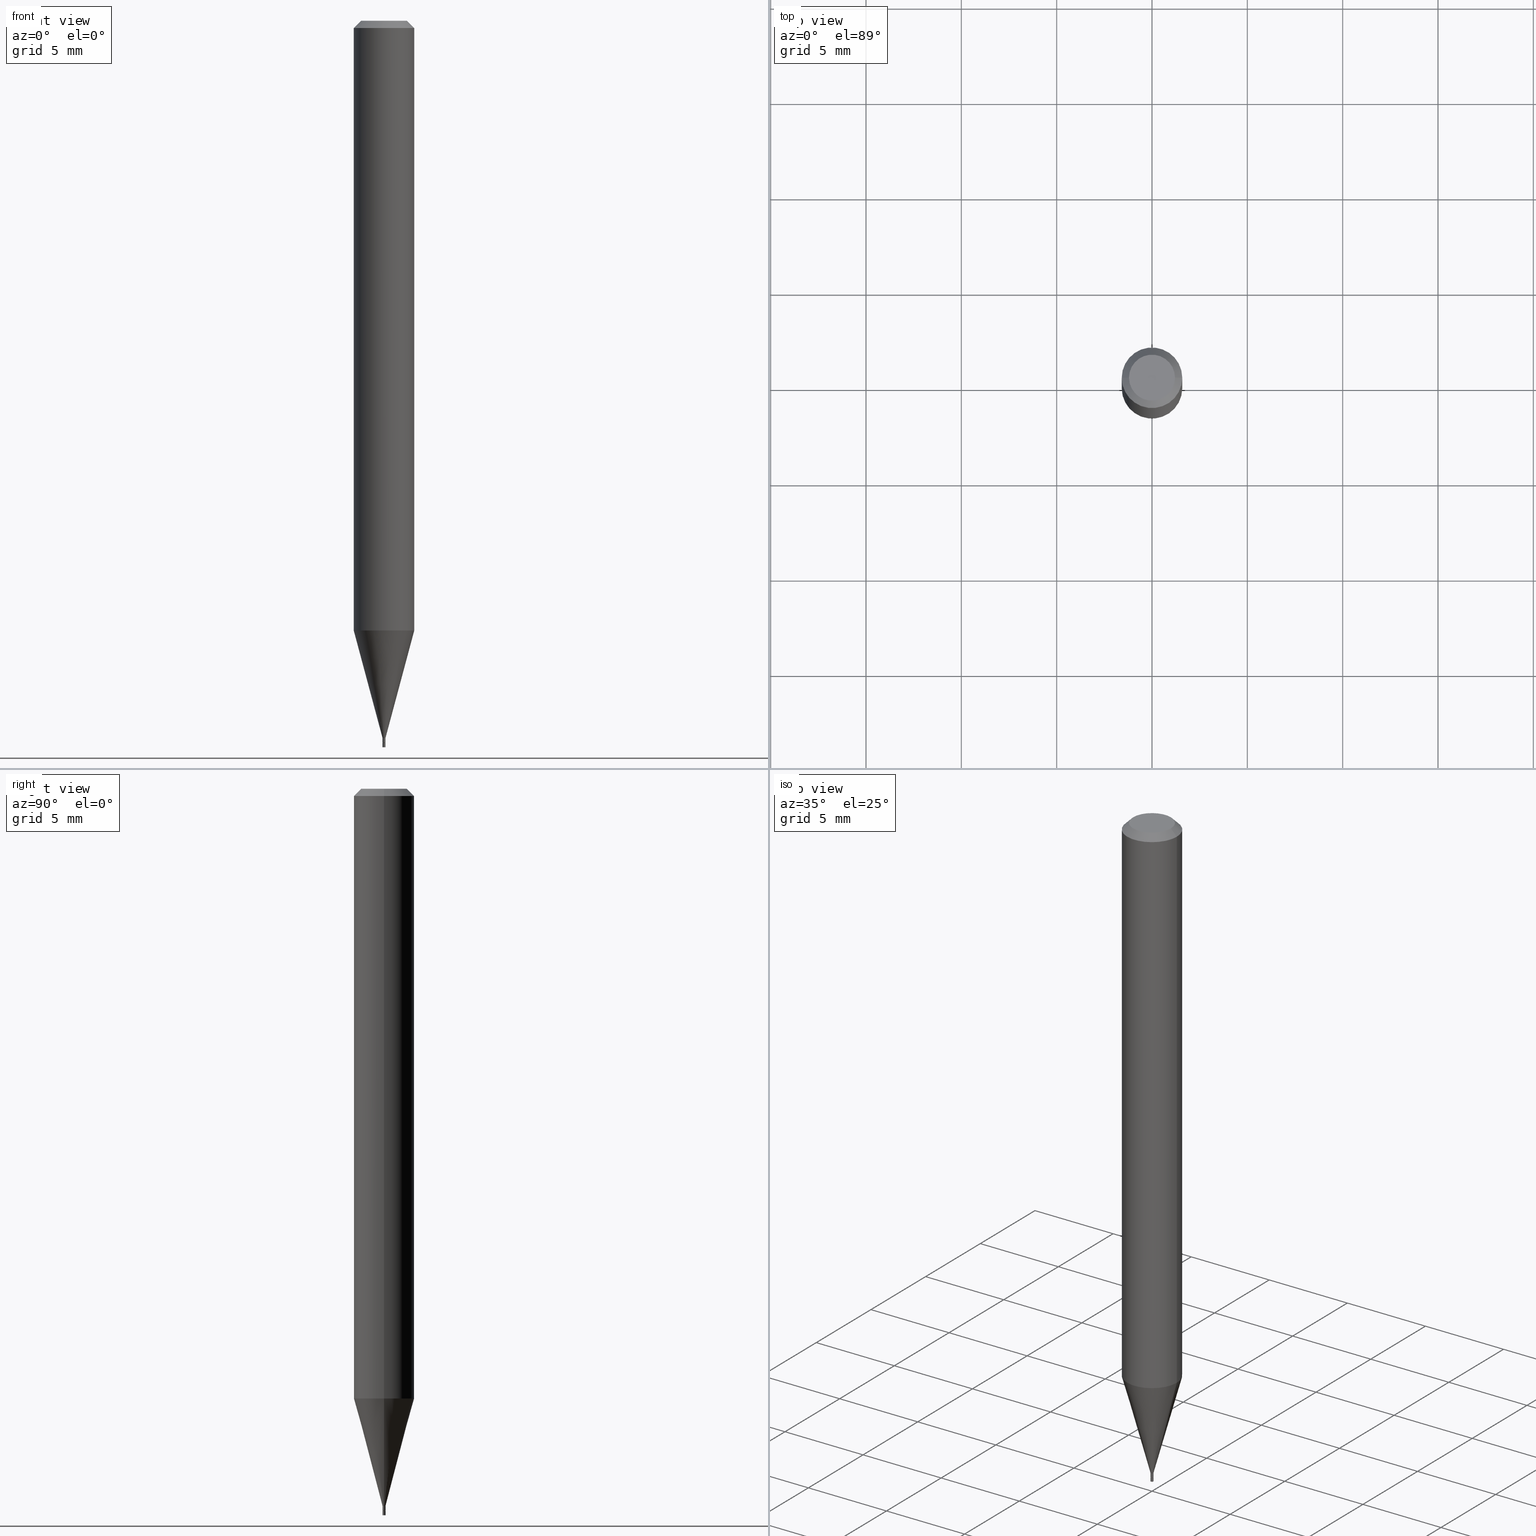
[diagram: canonical four-view strip — front | top / right | iso, engineering-drawing reading convention]
A machine part, canonical four-view strip (front | top / right | iso — engineering-drawing reading convention). The complete STEP part file that produces these views, byte-faithful:
ISO-10303-21;
HEADER;
FILE_DESCRIPTION (( 'STEP AP203' ),
    '1' );
FILE_NAME ('00302.STEP',
    '2024-03-19T20:57:00',
    ( '' ),
    ( '' ),
    'SwSTEP 2.0',
    'SolidWorks 2023',
    '' );
FILE_SCHEMA (( 'CONFIG_CONTROL_DESIGN' ));
ENDSEC;

DATA;
#1 = CIRCLE ( 'NONE', #261, 0.002500000000000000052 ) ;
#2 = ORIENTED_EDGE ( 'NONE', *, *, #102, .T. ) ;
#3 = DIRECTION ( 'NONE',  ( -2.445468806185136597E-29, 3.491481338843145583E-15, 1.000000000000000000 ) ) ;
#4 = UNCERTAINTY_MEASURE_WITH_UNIT (LENGTH_MEASURE( 1.000000000000000082E-05 ), #9, 'distance_accuracy_value', 'NONE');
#5 = DIRECTION ( 'NONE',  ( -2.445468806185136597E-29, 3.491481338843145583E-15, 1.000000000000000000 ) ) ;
#6 = DIRECTION ( 'NONE',  ( -2.445468806185136597E-29, 3.491481338843145583E-15, 1.000000000000000000 ) ) ;
#7 = APPROVAL_DATE_TIME ( #126, #296 ) ;
#8 = EDGE_CURVE ( 'NONE', #421, #144, #164, .T. ) ;
#9 =( CONVERSION_BASED_UNIT ( 'INCH', #436 ) LENGTH_UNIT ( ) NAMED_UNIT ( #143 ) );
#10 = CIRCLE ( 'NONE', #178, 0.06250000000000000000 ) ;
#11 = EDGE_CURVE ( 'NONE', #462, #62, #53, .T. ) ;
#12 = CIRCLE ( 'NONE', #139, 0.003000000000000000062 ) ;
#13 = PERSON_AND_ORGANIZATION ( #15, #301 ) ;
#14 = COORDINATED_UNIVERSAL_TIME_OFFSET ( 5, 0, .BEHIND. ) ;
#15 = PERSON ( 'UNSPECIFIED', 'UNSPECIFIED', 'UNSPECIFIED', ('UNSPECIFIED'), ('UNSPECIFIED'), ('UNSPECIFIED') ) ;
#16 = APPROVAL_STATUS ( 'not_yet_approved' ) ;
#17 = APPROVAL_PERSON_ORGANIZATION ( #334, #296, #81 ) ;
#18 = CARTESIAN_POINT ( 'NONE',  ( 3.668203209277705088E-31, -5.237222008264718399E-17, -0.01499999999999999944 ) ) ;
#19 = DIRECTION ( 'NONE',  ( 1.000000000000000000, -6.982962677686267499E-15, 5.108144071313017768E-29 ) ) ;
#20 = ADVANCED_FACE ( 'NONE', ( #272 ), #230, .T. ) ;
#21 = DIRECTION ( 'NONE',  ( 1.000000000000000000, -6.982962677686265922E-15, 4.876176775795935793E-29 ) ) ;
#22 = CC_DESIGN_PERSON_AND_ORGANIZATION_ASSIGNMENT ( #443, #123, ( #125 ) ) ;
#23 = CARTESIAN_POINT ( 'NONE',  ( -0.003000000000000000062, 2.131628207280300602E-17, -1.475680527076471750E-31 ) ) ;
#24 = ORIENTED_EDGE ( 'NONE', *, *, #458, .F. ) ;
#25 = CIRCLE ( 'NONE', #247, 0.04749999999999999362 ) ;
#26 = LINE ( 'NONE', #276, #154 ) ;
#27 = ORIENTED_EDGE ( 'NONE', *, *, #346, .F. ) ;
#28 = ADVANCED_FACE ( 'NONE', ( #344 ), #100, .T. ) ;
#29 = CARTESIAN_POINT ( 'NONE',  ( 0.06250000000000000000, -4.811533449433679005E-16, -0.01499999999999999944 ) ) ;
#30 = DIRECTION ( 'NONE',  ( -1.000000000000000000, 6.982962677686266711E-15, 0.000000000000000000 ) ) ;
#31 = LOCAL_TIME ( 16, 57, 0.000000000000000000, #119 ) ;
#32 = CONICAL_SURFACE ( 'NONE', #134, 0.002500000000000000052, 0.7853981633974723708 ) ;
#33 = ORIENTED_EDGE ( 'NONE', *, *, #159, .F. ) ;
#34 = LINE ( 'NONE', #284, #313 ) ;
#35 = CC_DESIGN_PERSON_AND_ORGANIZATION_ASSIGNMENT ( #343, #366, ( #427 ) ) ;
#36 = CIRCLE ( 'NONE', #363, 0.003000000000000000062 ) ;
#37 = ORIENTED_EDGE ( 'NONE', *, *, #193, .F. ) ;
#38 = DIRECTION ( 'NONE',  ( -0.2588190451025213501, 5.211531920934551042E-15, 0.9659258262890682012 ) ) ;
#39 = CARTESIAN_POINT ( 'NONE',  ( -8.783475466943041190E-44, 1.254047510459085029E-29, 3.591734821858152800E-15 ) ) ;
#40 = LOCAL_TIME ( 16, 57, 0.000000000000000000, #14 ) ;
#41 =( GEOMETRIC_REPRESENTATION_CONTEXT ( 3 ) GLOBAL_UNCERTAINTY_ASSIGNED_CONTEXT ( ( #4 ) ) GLOBAL_UNIT_ASSIGNED_CONTEXT ( ( #9, #153, #82 ) ) REPRESENTATION_CONTEXT ( 'NONE', 'WORKASPACE' ) );
#42 = EDGE_CURVE ( 'NONE', #146, #439, #36, .T. ) ;
#43 = FACE_OUTER_BOUND ( 'NONE', #463, .T. ) ;
#44 = ORIENTED_EDGE ( 'NONE', *, *, #429, .F. ) ;
#45 = CARTESIAN_POINT ( 'NONE',  ( 0.002999999999999922867, -5.225001823578766863E-15, -1.490500000000000158 ) ) ;
#46 = EDGE_CURVE ( 'NONE', #421, #413, #378, .T. ) ;
#47 = COORDINATED_UNIVERSAL_TIME_OFFSET ( 5, 0, .BEHIND. ) ;
#48 = LINE ( 'NONE', #190, #198 ) ;
#49 = ADVANCED_FACE ( 'NONE', ( #231 ), #304, .T. ) ;
#50 = DIRECTION ( 'NONE',  ( 2.445468806185136597E-29, -3.491481338843145583E-15, -1.000000000000000000 ) ) ;
#51 = PERSON_AND_ORGANIZATION_ROLE ( 'creator' ) ;
#52 = AXIS2_PLACEMENT_3D ( 'NONE', #398, #423, #150 ) ;
#53 = CIRCLE ( 'NONE', #341, 0.003000000000000000062 ) ;
#54 = DATE_TIME_ROLE ( 'creation_date' ) ;
#55 = CALENDAR_DATE ( 2024, 19, 3 ) ;
#56 = CARTESIAN_POINT ( 'NONE',  ( 3.646193990022038953E-29, -5.205798676215130324E-15, -1.491000000000000103 ) ) ;
#57 = AXIS2_PLACEMENT_3D ( 'NONE', #305, #63, #385 ) ;
#58 = DIRECTION ( 'NONE',  ( -2.445468806185136597E-29, 3.491481338843145583E-15, 1.000000000000000000 ) ) ;
#59 = VERTEX_POINT ( 'NONE', #353 ) ;
#60 = PRODUCT_DEFINITION_SHAPE ( 'NONE', 'NONE',  #177 ) ;
#61 = FACE_OUTER_BOUND ( 'NONE', #283, .T. ) ;
#62 = VERTEX_POINT ( 'NONE', #309 ) ;
#63 = DIRECTION ( 'NONE',  ( -2.445468806185136597E-29, 3.491481338843145583E-15, 1.000000000000000000 ) ) ;
#64 = CIRCLE ( 'NONE', #157, 0.06250000000000000000 ) ;
#65 = CARTESIAN_POINT ( 'NONE',  ( 3.646193990022038953E-29, -5.205798676215130324E-15, -1.491000000000000103 ) ) ;
#66 = EDGE_LOOP ( 'NONE', ( #132, #219 ) ) ;
#67 = CARTESIAN_POINT ( 'NONE',  ( -0.04749999999999999362, 3.578768372314273615E-16, 3.591734821858150433E-15 ) ) ;
#68 = ORIENTED_EDGE ( 'NONE', *, *, #8, .T. ) ;
#69 = CARTESIAN_POINT ( 'NONE',  ( 3.621739301960187407E-29, -5.170883862826698675E-15, -1.481000000000000094 ) ) ;
#70 = CC_DESIGN_PERSON_AND_ORGANIZATION_ASSIGNMENT ( #263, #342, ( #287 ) ) ;
#71 = VECTOR ( 'NONE', #451, 39.37007874015748143 ) ;
#72 = CARTESIAN_POINT ( 'NONE',  ( -0.002999999999999922867, -5.182736653472906584E-15, -1.490500000000000158 ) ) ;
#73 = CONICAL_SURFACE ( 'NONE', #369, 0.06250000000000000000, 0.7853981633973285970 ) ;
#74 = AXIS2_PLACEMENT_3D ( 'NONE', #18, #50, #196 ) ;
#75 = EDGE_LOOP ( 'NONE', ( #110, #78 ) ) ;
#76 = DIRECTION ( 'NONE',  ( 1.000000000000000000, -6.982962677686191769E-15, 0.000000000000000000 ) ) ;
#77 = CARTESIAN_POINT ( 'NONE',  ( 0.000000000000000000, 0.000000000000000000, 0.000000000000000000 ) ) ;
#78 = ORIENTED_EDGE ( 'NONE', *, *, #42, .F. ) ;
#79 = CC_DESIGN_PERSON_AND_ORGANIZATION_ASSIGNMENT ( #370, #51, ( #177 ) ) ;
#80 = DIRECTION ( 'NONE',  ( -2.445468806185136597E-29, 3.491481338843145583E-15, 1.000000000000000000 ) ) ;
#81 = APPROVAL_ROLE ( '' ) ;
#82 =( NAMED_UNIT ( * ) SI_UNIT ( $, .STERADIAN. ) SOLID_ANGLE_UNIT ( ) );
#83 = APPROVAL_ROLE ( '' ) ;
#84 = EDGE_LOOP ( 'NONE', ( #107, #138, #192, #340 ) ) ;
#85 = CC_DESIGN_PERSON_AND_ORGANIZATION_ASSIGNMENT ( #399, #189, ( #287 ) ) ;
#86 = APPROVAL_PERSON_ORGANIZATION ( #408, #374, #299 ) ;
#87 = DATE_AND_TIME ( #55, #225 ) ;
#88 = DIRECTION ( 'NONE',  ( 1.000000000000000000, -6.982962677686332186E-15, 0.000000000000000000 ) ) ;
#89 = CIRCLE ( 'NONE', #227, 0.002999999999999921566 ) ;
#90 = DIRECTION ( 'NONE',  ( 1.000000000000000000, -6.982962677686188613E-15, 0.000000000000000000 ) ) ;
#91 = EDGE_CURVE ( 'NONE', #439, #146, #12, .T. ) ;
#92 = DIRECTION ( 'NONE',  ( -2.445468806185136597E-29, 3.491481338843145583E-15, 1.000000000000000000 ) ) ;
#93 = DIRECTION ( 'NONE',  ( -2.445468806185136597E-29, 3.491481338843145583E-15, 1.000000000000000000 ) ) ;
#94 = EDGE_CURVE ( 'NONE', #59, #275, #166, .T. ) ;
#95 = VERTEX_POINT ( 'NONE', #98 ) ;
#96 = FACE_OUTER_BOUND ( 'NONE', #428, .T. ) ;
#97 = AXIS2_PLACEMENT_3D ( 'NONE', #348, #382, #446 ) ;
#98 = CARTESIAN_POINT ( 'NONE',  ( 0.002500000000000000052, -5.223256082909346148E-15, -1.491000000000000103 ) ) ;
#99 = ORIENTED_EDGE ( 'NONE', *, *, #11, .F. ) ;
#100 = CONICAL_SURFACE ( 'NONE', #74, 0.06250000000000000000, 0.7853981633973285970 ) ;
#101 = DIRECTION ( 'NONE',  ( 1.000000000000000000, -6.982962677686266711E-15, 0.000000000000000000 ) ) ;
#102 = EDGE_CURVE ( 'NONE', #298, #403, #459, .T. ) ;
#103 = CARTESIAN_POINT ( 'NONE',  ( 3.316907271900976096E-16, 0.04749999999999999362, 1.630022047334026855E-15 ) ) ;
#104 = CC_DESIGN_APPROVAL ( #360, ( #177 ) ) ;
#105 = CARTESIAN_POINT ( 'NONE',  ( 0.06250000000000000000, -4.832011078042738278E-15, -1.258942976949652293 ) ) ;
#106 = ADVANCED_FACE ( 'NONE', ( #96 ), #202, .F. ) ;
#107 = ORIENTED_EDGE ( 'NONE', *, *, #255, .F. ) ;
#108 = DIRECTION ( 'NONE',  ( -0.7071067811864628627, 2.468850131081369986E-15, -0.7071067811866321717 ) ) ;
#109 = ORIENTED_EDGE ( 'NONE', *, *, #395, .T. ) ;
#110 = ORIENTED_EDGE ( 'NONE', *, *, #91, .F. ) ;
#111 = ADVANCED_FACE ( 'NONE', ( #350 ), #32, .T. ) ;
#112 = CARTESIAN_POINT ( 'NONE',  ( 3.078705778896227940E-29, -4.395575910687346608E-15, -1.258942976949652293 ) ) ;
#113 = DIRECTION ( 'NONE',  ( 2.445468806185136597E-29, -3.491481338843145583E-15, -1.000000000000000000 ) ) ;
#114 = CIRCLE ( 'NONE', #205, 0.002500000000000000052 ) ;
#115 = CARTESIAN_POINT ( 'NONE',  ( 0.06250000000000000000, -4.888073874380388472E-16, -0.01499999999999999944 ) ) ;
#116 = CARTESIAN_POINT ( 'NONE',  ( 3.621739301960187407E-29, -5.170883862826698675E-15, -1.481000000000000094 ) ) ;
#117 = APPLICATION_PROTOCOL_DEFINITION ( 'international standard', 'config_control_design', 1994, #187 ) ;
#118 = CIRCLE ( 'NONE', #294, 0.003000000000000000062 ) ;
#119 = COORDINATED_UNIVERSAL_TIME_OFFSET ( 5, 0, .BEHIND. ) ;
#120 = VERTEX_POINT ( 'NONE', #167 ) ;
#121 = CLOSED_SHELL ( 'NONE', ( #165, #111, #28, #174, #381, #465, #252, #258, #106, #181, #455, #289 ) ) ;
#122 = EDGE_CURVE ( 'NONE', #413, #421, #359, .T. ) ;
#123 = PERSON_AND_ORGANIZATION_ROLE ( 'classification_officer' ) ;
#124 = DATE_AND_TIME ( #228, #149 ) ;
#125 = SECURITY_CLASSIFICATION ( '', '', #297 ) ;
#126 = DATE_AND_TIME ( #402, #31 ) ;
#127 = ADVANCED_BREP_SHAPE_REPRESENTATION ( '00302', ( #307, #447, #422 ), #41 ) ;
#128 = CARTESIAN_POINT ( 'NONE',  ( 3.078705778896227940E-29, -4.395575910687346608E-15, -1.258942976949652293 ) ) ;
#129 = DESIGN_CONTEXT ( 'detailed design', #187, 'design' ) ;
#130 = EDGE_CURVE ( 'NONE', #323, #59, #26, .T. ) ;
#131 = CARTESIAN_POINT ( 'NONE',  ( 3.576687321579069994E-29, -5.368277968210015545E-15, -1.500000000000000222 ) ) ;
#132 = ORIENTED_EDGE ( 'NONE', *, *, #159, .T. ) ;
#133 = DIRECTION ( 'NONE',  ( -2.445468806185136597E-29, 3.491481338843145583E-15, 1.000000000000000000 ) ) ;
#134 = AXIS2_PLACEMENT_3D ( 'NONE', #379, #133, #237 ) ;
#135 = DIRECTION ( 'NONE',  ( 1.000000000000000000, -6.982962677686332186E-15, 0.000000000000000000 ) ) ;
#136 = AXIS2_PLACEMENT_3D ( 'NONE', #77, #243, #466 ) ;
#137 = DIRECTION ( 'NONE',  ( 2.438088387897960049E-29, -3.491481338843145188E-15, -1.000000000000000000 ) ) ;
#138 = ORIENTED_EDGE ( 'NONE', *, *, #414, .T. ) ;
#139 = AXIS2_PLACEMENT_3D ( 'NONE', #235, #302, #453 ) ;
#140 = CYLINDRICAL_SURFACE ( 'NONE', #400, 0.002999999999999922434 ) ;
#141 = ORIENTED_EDGE ( 'NONE', *, *, #122, .F. ) ;
#142 = DIRECTION ( 'NONE',  ( 0.7071067811864628627, -7.319954787622970478E-15, -0.7071067811866321717 ) ) ;
#143 = DIMENSIONAL_EXPONENTS ( 1.000000000000000000, 0.000000000000000000, 0.000000000000000000, 0.000000000000000000, 0.000000000000000000, 0.000000000000000000, 0.000000000000000000 ) ;
#144 = VERTEX_POINT ( 'NONE', #200 ) ;
#145 = DIRECTION ( 'NONE',  ( -2.445468806185136597E-29, 3.491481338843145583E-15, 1.000000000000000000 ) ) ;
#146 = VERTEX_POINT ( 'NONE', #355 ) ;
#147 = DIRECTION ( 'NONE',  ( 1.000000000000000000, -6.982962677686191769E-15, 0.000000000000000000 ) ) ;
#148 = CARTESIAN_POINT ( 'NONE',  ( -0.06250000000000000000, 3.840629472727444916E-16, -0.01499999999999999944 ) ) ;
#149 = LOCAL_TIME ( 16, 57, 0.000000000000000000, #339 ) ;
#150 = DIRECTION ( 'NONE',  ( -1.000000000000000000, 6.982962677686265922E-15, -4.876176775795935793E-29 ) ) ;
#151 = DIRECTION ( 'NONE',  ( 0.2588190451025213501, 1.565188264969621968E-15, 0.9659258262890682012 ) ) ;
#152 = DIRECTION ( 'NONE',  ( -2.445468806185136597E-29, 3.491481338843145583E-15, 1.000000000000000000 ) ) ;
#153 =( NAMED_UNIT ( * ) PLANE_ANGLE_UNIT ( ) SI_UNIT ( $, .RADIAN. ) );
#154 = VECTOR ( 'NONE', #170, 39.37007874015748143 ) ;
#155 = APPROVAL_DATE_TIME ( #87, #360 ) ;
#156 = CALENDAR_DATE ( 2024, 19, 3 ) ;
#157 = AXIS2_PLACEMENT_3D ( 'NONE', #333, #185, #222 ) ;
#158 = CARTESIAN_POINT ( 'NONE',  ( -0.002999999999999921566, -4.550527140795590610E-15, -1.481000000000000094 ) ) ;
#159 = EDGE_CURVE ( 'NONE', #62, #462, #118, .T. ) ;
#160 = DIRECTION ( 'NONE',  ( -2.445468806185136877E-29, 3.491481338843145188E-15, 1.000000000000000000 ) ) ;
#161 = CARTESIAN_POINT ( 'NONE',  ( 3.668203209277705088E-31, -5.237222008264718399E-17, -0.01499999999999999944 ) ) ;
#162 = ORIENTED_EDGE ( 'NONE', *, *, #321, .F. ) ;
#163 = LINE ( 'NONE', #23, #71 ) ;
#164 = LINE ( 'NONE', #303, #234 ) ;
#165 = ADVANCED_FACE ( 'NONE', ( #61 ), #140, .T. ) ;
#166 = CIRCLE ( 'NONE', #373, 0.06250000000000000000 ) ;
#167 = CARTESIAN_POINT ( 'NONE',  ( -0.002500000000000000052, -5.185385880647017785E-15, -1.491000000000000103 ) ) ;
#168 = VERTEX_POINT ( 'NONE', #158 ) ;
#169 = CONICAL_SURFACE ( 'NONE', #213, 0.002999999999999921566, 0.2617993877991500740 ) ;
#170 = DIRECTION ( 'NONE',  ( -2.445468806185136877E-29, 3.491481338843145188E-15, 1.000000000000000000 ) ) ;
#171 = ORIENTED_EDGE ( 'NONE', *, *, #240, .T. ) ;
#172 = LINE ( 'NONE', #316, #354 ) ;
#173 = ORIENTED_EDGE ( 'NONE', *, *, #206, .F. ) ;
#174 = ADVANCED_FACE ( 'NONE', ( #269 ), #207, .T. ) ;
#175 = ORIENTED_EDGE ( 'NONE', *, *, #46, .T. ) ;
#176 = DIRECTION ( 'NONE',  ( -2.445468806185136597E-29, 3.491481338843145583E-15, 1.000000000000000000 ) ) ;
#177 = PRODUCT_DEFINITION ( 'UNKNOWN', '', #287, #129 ) ;
#178 = AXIS2_PLACEMENT_3D ( 'NONE', #128, #232, #264 ) ;
#179 = DIRECTION ( 'NONE',  ( -2.445468806185136597E-29, 3.491481338843145583E-15, 1.000000000000000000 ) ) ;
#180 = AXIS2_PLACEMENT_3D ( 'NONE', #347, #265, #418 ) ;
#181 = ADVANCED_FACE ( 'NONE', ( #266 ), #419, .F. ) ;
#182 = DIRECTION ( 'NONE',  ( -2.445468806185136597E-29, 3.491481338843145583E-15, 1.000000000000000000 ) ) ;
#183 = ORIENTED_EDGE ( 'NONE', *, *, #8, .F. ) ;
#184 = CARTESIAN_POINT ( 'NONE',  ( 0.000000000000000000, 0.000000000000000000, 0.000000000000000000 ) ) ;
#185 = DIRECTION ( 'NONE',  ( -2.445468806185136597E-29, 3.491481338843145583E-15, 1.000000000000000000 ) ) ;
#186 = ORIENTED_EDGE ( 'NONE', *, *, #329, .T. ) ;
#187 = APPLICATION_CONTEXT ( 'configuration controlled 3d designs of mechanical parts and assemblies' ) ;
#188 = FACE_OUTER_BOUND ( 'NONE', #377, .T. ) ;
#189 = PERSON_AND_ORGANIZATION_ROLE ( 'creator' ) ;
#190 = CARTESIAN_POINT ( 'NONE',  ( 0.002999999999999921566, -5.191832750859756717E-15, -1.481000000000000094 ) ) ;
#191 = APPROVAL_DATE_TIME ( #197, #374 ) ;
#192 = ORIENTED_EDGE ( 'NONE', *, *, #458, .T. ) ;
#193 = EDGE_CURVE ( 'NONE', #323, #242, #10, .T. ) ;
#194 = DIRECTION ( 'NONE',  ( -2.445468806185136597E-29, 3.491481338843145583E-15, 1.000000000000000000 ) ) ;
#195 = AXIS2_PLACEMENT_3D ( 'NONE', #184, #176, #218 ) ;
#196 = DIRECTION ( 'NONE',  ( -1.000000000000000000, 6.982962677686266711E-15, 0.000000000000000000 ) ) ;
#197 = DATE_AND_TIME ( #253, #406 ) ;
#198 = VECTOR ( 'NONE', #151, 39.37007874015747433 ) ;
#199 = CARTESIAN_POINT ( 'NONE',  ( 0.003000000000000000062, -2.094888803305880087E-17, 1.462853032738780615E-31 ) ) ;
#200 = CARTESIAN_POINT ( 'NONE',  ( 0.002999999999999921566, -5.191832750859756717E-15, -1.481000000000000094 ) ) ;
#201 = ORIENTED_EDGE ( 'NONE', *, *, #130, .T. ) ;
#202 = PLANE ( 'NONE',  #254 ) ;
#203 = ORIENTED_EDGE ( 'NONE', *, *, #102, .F. ) ;
#204 = DIRECTION ( 'NONE',  ( -2.445468806185136597E-29, 3.491481338843145583E-15, 1.000000000000000000 ) ) ;
#205 = AXIS2_PLACEMENT_3D ( 'NONE', #461, #145, #281 ) ;
#206 = EDGE_CURVE ( 'NONE', #439, #62, #411, .T. ) ;
#207 = CYLINDRICAL_SURFACE ( 'NONE', #97, 0.06250000000000000000 ) ;
#208 = ADVANCED_FACE ( 'NONE', ( #448 ), #449, .F. ) ;
#209 = CARTESIAN_POINT ( 'NONE',  ( -0.06250000000000000000, -3.951486700837283992E-15, -1.258942976949652293 ) ) ;
#210 = ORIENTED_EDGE ( 'NONE', *, *, #424, .T. ) ;
#211 = LINE ( 'NONE', #431, #338 ) ;
#212 = VECTOR ( 'NONE', #416, 39.37007874015748143 ) ;
#213 = AXIS2_PLACEMENT_3D ( 'NONE', #217, #456, #147 ) ;
#214 = ORIENTED_EDGE ( 'NONE', *, *, #292, .F. ) ;
#215 = DIRECTION ( 'NONE',  ( -2.445468806185136877E-29, 3.491481338843145188E-15, 1.000000000000000000 ) ) ;
#216 = EDGE_CURVE ( 'NONE', #146, #462, #163, .T. ) ;
#217 = CARTESIAN_POINT ( 'NONE',  ( 3.621739301960187407E-29, -5.170883862826698675E-15, -1.481000000000000094 ) ) ;
#218 = DIRECTION ( 'NONE',  ( 1.000000000000000000, -6.982962677686266711E-15, 4.876176775795935793E-29 ) ) ;
#219 = ORIENTED_EDGE ( 'NONE', *, *, #11, .T. ) ;
#220 = APPROVAL_PERSON_ORGANIZATION ( #13, #360, #83 ) ;
#221 = ORIENTED_EDGE ( 'NONE', *, *, #216, .F. ) ;
#222 = DIRECTION ( 'NONE',  ( 1.000000000000000000, -6.982962677686266711E-15, 0.000000000000000000 ) ) ;
#223 = DIRECTION ( 'NONE',  ( 1.000000000000000000, 0.000000000000000000, 0.000000000000000000 ) ) ;
#224 = APPROVAL_STATUS ( 'not_yet_approved' ) ;
#225 = LOCAL_TIME ( 16, 57, 0.000000000000000000, #291 ) ;
#226 = MECHANICAL_CONTEXT ( 'NONE', #391, 'mechanical' ) ;
#227 = AXIS2_PLACEMENT_3D ( 'NONE', #241, #387, #430 ) ;
#228 = CALENDAR_DATE ( 2024, 19, 3 ) ;
#229 = CARTESIAN_POINT ( 'NONE',  ( 0.000000000000000000, 0.000000000000000000, 0.000000000000000000 ) ) ;
#230 = CYLINDRICAL_SURFACE ( 'NONE', #180, 0.003000000000000000062 ) ;
#231 = FACE_OUTER_BOUND ( 'NONE', #361, .T. ) ;
#232 = DIRECTION ( 'NONE',  ( -2.445468806185136597E-29, 3.491481338843145583E-15, 1.000000000000000000 ) ) ;
#233 = ORIENTED_EDGE ( 'NONE', *, *, #346, .T. ) ;
#234 = VECTOR ( 'NONE', #160, 39.37007874015748143 ) ;
#235 = CARTESIAN_POINT ( 'NONE',  ( 3.668203209277704895E-29, -5.237222008264718177E-15, -1.500000000000000222 ) ) ;
#236 = ORIENTED_EDGE ( 'NONE', *, *, #46, .F. ) ;
#237 = DIRECTION ( 'NONE',  ( 1.000000000000000000, -6.982962677686138915E-15, 0.000000000000000000 ) ) ;
#238 = AXIS2_PLACEMENT_3D ( 'NONE', #365, #80, #256 ) ;
#239 = DIRECTION ( 'NONE',  ( -1.000000000000000000, 6.982962677686265922E-15, -4.876176775795935793E-29 ) ) ;
#240 = EDGE_CURVE ( 'NONE', #95, #421, #274, .T. ) ;
#241 = CARTESIAN_POINT ( 'NONE',  ( 3.621739301960187407E-29, -5.170883862826698675E-15, -1.481000000000000094 ) ) ;
#242 = VERTEX_POINT ( 'NONE', #105 ) ;
#243 = DIRECTION ( 'NONE',  ( -2.445468806185136597E-29, 3.491481338843145583E-15, 1.000000000000000000 ) ) ;
#244 = ORIENTED_EDGE ( 'NONE', *, *, #42, .T. ) ;
#245 = FACE_OUTER_BOUND ( 'NONE', #66, .T. ) ;
#246 = EDGE_CURVE ( 'NONE', #242, #275, #326, .T. ) ;
#247 = AXIS2_PLACEMENT_3D ( 'NONE', #39, #179, #278 ) ;
#248 = CARTESIAN_POINT ( 'NONE',  ( 3.668203209277705088E-31, -5.237222008264718399E-17, -0.01499999999999999944 ) ) ;
#249 = CLOSED_SHELL ( 'NONE', ( #49, #208, #20, #349 ) ) ;
#250 = FACE_OUTER_BOUND ( 'NONE', #454, .T. ) ;
#251 = ORIENTED_EDGE ( 'NONE', *, *, #122, .T. ) ;
#252 = ADVANCED_FACE ( 'NONE', ( #250 ), #322, .T. ) ;
#253 = CALENDAR_DATE ( 2024, 19, 3 ) ;
#254 = AXIS2_PLACEMENT_3D ( 'NONE', #103, #137, #239 ) ;
#255 = EDGE_CURVE ( 'NONE', #403, #298, #25, .T. ) ;
#256 = DIRECTION ( 'NONE',  ( 1.000000000000000000, -6.982962677686138915E-15, 0.000000000000000000 ) ) ;
#257 = CC_DESIGN_APPROVAL ( #374, ( #287 ) ) ;
#258 = ADVANCED_FACE ( 'NONE', ( #397 ), #73, .T. ) ;
#259 = SHAPE_DEFINITION_REPRESENTATION ( #60, #127 ) ;
#260 = APPLICATION_PROTOCOL_DEFINITION ( 'international standard', 'config_control_design', 1994, #391 ) ;
#261 = AXIS2_PLACEMENT_3D ( 'NONE', #331, #6, #295 ) ;
#262 = ORIENTED_EDGE ( 'NONE', *, *, #240, .F. ) ;
#263 = PERSON_AND_ORGANIZATION ( #15, #301 ) ;
#264 = DIRECTION ( 'NONE',  ( 1.000000000000000000, -6.982962677686262766E-15, 0.000000000000000000 ) ) ;
#265 = DIRECTION ( 'NONE',  ( -2.445468806185136597E-29, 3.491481338843145583E-15, 1.000000000000000000 ) ) ;
#266 = FACE_OUTER_BOUND ( 'NONE', #317, .T. ) ;
#267 = EDGE_CURVE ( 'NONE', #298, #59, #425, .T. ) ;
#268 = AXIS2_PLACEMENT_3D ( 'NONE', #131, #376, #21 ) ;
#269 = FACE_OUTER_BOUND ( 'NONE', #330, .T. ) ;
#270 = ORIENTED_EDGE ( 'NONE', *, *, #91, .T. ) ;
#271 = VECTOR ( 'NONE', #108, 39.37007874015748143 ) ;
#272 = FACE_OUTER_BOUND ( 'NONE', #388, .T. ) ;
#273 = AXIS2_PLACEMENT_3D ( 'NONE', #308, #5, #327 ) ;
#274 = LINE ( 'NONE', #319, #337 ) ;
#275 = VERTEX_POINT ( 'NONE', #115 ) ;
#276 = CARTESIAN_POINT ( 'NONE',  ( -0.06250000000000000000, 4.440892098500626162E-16, -3.074334431409316114E-30 ) ) ;
#277 = ORIENTED_EDGE ( 'NONE', *, *, #336, .F. ) ;
#278 = DIRECTION ( 'NONE',  ( 1.000000000000000000, -6.982962677686267499E-15, 5.108144071313017768E-29 ) ) ;
#279 = ORIENTED_EDGE ( 'NONE', *, *, #94, .F. ) ;
#280 = EDGE_LOOP ( 'NONE', ( #452, #383, #351, #460 ) ) ;
#281 = DIRECTION ( 'NONE',  ( 1.000000000000000000, -6.982962677686138915E-15, 0.000000000000000000 ) ) ;
#282 = ORIENTED_EDGE ( 'NONE', *, *, #372, .T. ) ;
#283 = EDGE_LOOP ( 'NONE', ( #175, #233, #214, #183 ) ) ;
#284 = CARTESIAN_POINT ( 'NONE',  ( -0.002500000000000000052, -5.188035107821127409E-15, -1.491000000000000103 ) ) ;
#285 = ORIENTED_EDGE ( 'NONE', *, *, #94, .T. ) ;
#286 = CYLINDRICAL_SURFACE ( 'NONE', #195, 0.002999999999999922434 ) ;
#287 = PRODUCT_DEFINITION_FORMATION_WITH_SPECIFIED_SOURCE ( 'ANY', '', #427, .NOT_KNOWN. ) ;
#288 = DIRECTION ( 'NONE',  ( 1.000000000000000000, -6.982962677686262766E-15, 0.000000000000000000 ) ) ;
#289 = ADVANCED_FACE ( 'NONE', ( #390 ), #286, .T. ) ;
#290 =( LENGTH_UNIT ( ) NAMED_UNIT ( * ) SI_UNIT ( $, .METRE. ) );
#291 = COORDINATED_UNIVERSAL_TIME_OFFSET ( 5, 0, .BEHIND. ) ;
#292 = EDGE_CURVE ( 'NONE', #144, #168, #89, .T. ) ;
#293 = DIRECTION ( 'NONE',  ( 0.000000000000000000, 0.000000000000000000, 1.000000000000000000 ) ) ;
#294 = AXIS2_PLACEMENT_3D ( 'NONE', #65, #92, #314 ) ;
#295 = DIRECTION ( 'NONE',  ( 1.000000000000000000, -6.982962677686138915E-15, 0.000000000000000000 ) ) ;
#296 = APPROVAL ( #404, 'UNSPECIFIED' ) ;
#297 = SECURITY_CLASSIFICATION_LEVEL ( 'unclassified' ) ;
#298 = VERTEX_POINT ( 'NONE', #67 ) ;
#299 = APPROVAL_ROLE ( '' ) ;
#300 = CC_DESIGN_APPROVAL ( #296, ( #125 ) ) ;
#301 = ORGANIZATION ( 'UNSPECIFIED', 'UNSPECIFIED', '' ) ;
#302 = DIRECTION ( 'NONE',  ( -2.445468806185136597E-29, 3.491481338843145583E-15, 1.000000000000000000 ) ) ;
#303 = CARTESIAN_POINT ( 'NONE',  ( 0.002999999999999922434, -2.094888803305825853E-17, 1.462853032738742955E-31 ) ) ;
#304 = CYLINDRICAL_SURFACE ( 'NONE', #273, 0.003000000000000000062 ) ;
#305 = CARTESIAN_POINT ( 'NONE',  ( 3.644971255618946712E-29, -5.204052935545708820E-15, -1.490500000000000158 ) ) ;
#306 = CC_DESIGN_DATE_AND_TIME_ASSIGNMENT ( #332, #444, ( #125 ) ) ;
#307 = MANIFOLD_SOLID_BREP ( 'Body-Move/Copy2[1]', #249 ) ;
#308 = CARTESIAN_POINT ( 'NONE',  ( 0.000000000000000000, 0.000000000000000000, 0.000000000000000000 ) ) ;
#309 = CARTESIAN_POINT ( 'NONE',  ( 0.003000000000000000062, -5.226747564248189155E-15, -1.491000000000000103 ) ) ;
#310 = CARTESIAN_POINT ( 'NONE',  ( 3.646193990022038953E-29, -5.205798676215130324E-15, -1.491000000000000103 ) ) ;
#311 = DIRECTION ( 'NONE',  ( -2.438088387897960049E-29, 3.491481338843145188E-15, 1.000000000000000000 ) ) ;
#312 = ORIENTED_EDGE ( 'NONE', *, *, #130, .F. ) ;
#313 = VECTOR ( 'NONE', #357, 39.37007874015748143 ) ;
#314 = DIRECTION ( 'NONE',  ( 1.000000000000000000, -6.982962677686332186E-15, 0.000000000000000000 ) ) ;
#315 = EDGE_LOOP ( 'NONE', ( #405, #282, #236, #262 ) ) ;
#316 = CARTESIAN_POINT ( 'NONE',  ( -0.002999999999999922434, 2.131628207280245443E-17, -1.475680527076433653E-31 ) ) ;
#317 = EDGE_LOOP ( 'NONE', ( #44, #318 ) ) ;
#318 = ORIENTED_EDGE ( 'NONE', *, *, #329, .F. ) ;
#319 = CARTESIAN_POINT ( 'NONE',  ( 0.002500000000000000052, -5.223256082909346148E-15, -1.491000000000000103 ) ) ;
#320 = AXIS2_PLACEMENT_3D ( 'NONE', #56, #311, #412 ) ;
#321 = EDGE_CURVE ( 'NONE', #168, #323, #211, .T. ) ;
#322 = CYLINDRICAL_SURFACE ( 'NONE', #136, 0.06250000000000000000 ) ;
#323 = VERTEX_POINT ( 'NONE', #209 ) ;
#324 = LINE ( 'NONE', #29, #415 ) ;
#325 = ORIENTED_EDGE ( 'NONE', *, *, #372, .F. ) ;
#326 = LINE ( 'NONE', #362, #394 ) ;
#327 = DIRECTION ( 'NONE',  ( 1.000000000000000000, -6.982962677686266711E-15, 4.876176775795935232E-29 ) ) ;
#328 = CARTESIAN_POINT ( 'NONE',  ( -0.003000000000000000062, -5.200194060167121620E-15, -1.491000000000000103 ) ) ;
#329 = EDGE_CURVE ( 'NONE', #120, #95, #114, .T. ) ;
#330 = EDGE_LOOP ( 'NONE', ( #109, #201, #24, #426 ) ) ;
#331 = CARTESIAN_POINT ( 'NONE',  ( 3.646193990022038953E-29, -5.205798676215130324E-15, -1.491000000000000103 ) ) ;
#332 = DATE_AND_TIME ( #156, #40 ) ;
#333 = CARTESIAN_POINT ( 'NONE',  ( 3.668203209277705088E-31, -5.237222008264718399E-17, -0.01499999999999999944 ) ) ;
#334 = PERSON_AND_ORGANIZATION ( #15, #301 ) ;
#335 = ORIENTED_EDGE ( 'NONE', *, *, #414, .F. ) ;
#336 = EDGE_CURVE ( 'NONE', #168, #144, #396, .T. ) ;
#337 = VECTOR ( 'NONE', #364, 39.37007874015748143 ) ;
#338 = VECTOR ( 'NONE', #38, 39.37007874015747433 ) ;
#339 = COORDINATED_UNIVERSAL_TIME_OFFSET ( 5, 0, .BEHIND. ) ;
#340 = ORIENTED_EDGE ( 'NONE', *, *, #267, .F. ) ;
#341 = AXIS2_PLACEMENT_3D ( 'NONE', #310, #93, #135 ) ;
#342 = PERSON_AND_ORGANIZATION_ROLE ( 'design_supplier' ) ;
#343 = PERSON_AND_ORGANIZATION ( #15, #301 ) ;
#344 = FACE_OUTER_BOUND ( 'NONE', #84, .T. ) ;
#345 = CARTESIAN_POINT ( 'NONE',  ( -8.783475466943041190E-44, 1.254047510459085029E-29, 3.591734821858152800E-15 ) ) ;
#346 = EDGE_CURVE ( 'NONE', #413, #168, #172, .T. ) ;
#347 = CARTESIAN_POINT ( 'NONE',  ( 0.000000000000000000, 0.000000000000000000, 0.000000000000000000 ) ) ;
#348 = CARTESIAN_POINT ( 'NONE',  ( 0.000000000000000000, 0.000000000000000000, 0.000000000000000000 ) ) ;
#349 = ADVANCED_FACE ( 'NONE', ( #245 ), #358, .F. ) ;
#350 = FACE_OUTER_BOUND ( 'NONE', #315, .T. ) ;
#351 = ORIENTED_EDGE ( 'NONE', *, *, #395, .F. ) ;
#352 = AXIS2_PLACEMENT_3D ( 'NONE', #116, #152, #401 ) ;
#353 = CARTESIAN_POINT ( 'NONE',  ( -0.06250000000000000000, -1.779884855534934425E-15, -0.01499999999999999944 ) ) ;
#354 = VECTOR ( 'NONE', #215, 39.37007874015748143 ) ;
#355 = CARTESIAN_POINT ( 'NONE',  ( -0.003000000000000000062, -5.200194060167121620E-15, -1.500000000000000222 ) ) ;
#356 = ORIENTED_EDGE ( 'NONE', *, *, #267, .T. ) ;
#357 = DIRECTION ( 'NONE',  ( -0.7071067811865645591, 7.493145998870415691E-15, 0.7071067811865304753 ) ) ;
#358 = PLANE ( 'NONE',  #52 ) ;
#359 = CIRCLE ( 'NONE', #57, 0.002999999999999922867 ) ;
#360 = APPROVAL ( #16, 'UNSPECIFIED' ) ;
#361 = EDGE_LOOP ( 'NONE', ( #270, #442, #33, #173 ) ) ;
#362 = CARTESIAN_POINT ( 'NONE',  ( 0.06250000000000000000, -4.364351673553916694E-16, 3.047610484872459871E-30 ) ) ;
#363 = AXIS2_PLACEMENT_3D ( 'NONE', #368, #194, #88 ) ;
#364 = DIRECTION ( 'NONE',  ( 0.7071067811865645591, -2.468850131082435343E-15, 0.7071067811865304753 ) ) ;
#365 = CARTESIAN_POINT ( 'NONE',  ( 3.646193990022038953E-29, -5.205798676215130324E-15, -1.491000000000000103 ) ) ;
#366 = PERSON_AND_ORGANIZATION_ROLE ( 'design_owner' ) ;
#367 = ORIENTED_EDGE ( 'NONE', *, *, #336, .T. ) ;
#368 = CARTESIAN_POINT ( 'NONE',  ( 3.668203209277704895E-29, -5.237222008264718177E-15, -1.500000000000000222 ) ) ;
#369 = AXIS2_PLACEMENT_3D ( 'NONE', #248, #113, #30 ) ;
#370 = PERSON_AND_ORGANIZATION ( #15, #301 ) ;
#371 = CARTESIAN_POINT ( 'NONE',  ( 3.644971255618946712E-29, -5.204052935545708820E-15, -1.490500000000000158 ) ) ;
#372 = EDGE_CURVE ( 'NONE', #120, #413, #34, .T. ) ;
#373 = AXIS2_PLACEMENT_3D ( 'NONE', #161, #375, #101 ) ;
#374 = APPROVAL ( #224, 'UNSPECIFIED' ) ;
#375 = DIRECTION ( 'NONE',  ( -2.445468806185136597E-29, 3.491481338843145583E-15, 1.000000000000000000 ) ) ;
#376 = DIRECTION ( 'NONE',  ( -2.438088387897960049E-29, 3.491481338843145188E-15, 1.000000000000000000 ) ) ;
#377 = EDGE_LOOP ( 'NONE', ( #325, #186, #171, #141 ) ) ;
#378 = CIRCLE ( 'NONE', #441, 0.002999999999999922867 ) ;
#379 = CARTESIAN_POINT ( 'NONE',  ( 3.646193990022038953E-29, -5.205798676215130324E-15, -1.491000000000000103 ) ) ;
#380 = EDGE_LOOP ( 'NONE', ( #27, #251, #68, #277 ) ) ;
#381 = ADVANCED_FACE ( 'NONE', ( #464 ), #169, .T. ) ;
#382 = DIRECTION ( 'NONE',  ( -2.445468806185136597E-29, 3.491481338843145583E-15, 1.000000000000000000 ) ) ;
#383 = ORIENTED_EDGE ( 'NONE', *, *, #321, .T. ) ;
#384 = CONICAL_SURFACE ( 'NONE', #352, 0.002999999999999921566, 0.2617993877991500740 ) ;
#385 = DIRECTION ( 'NONE',  ( 1.000000000000000000, -6.982962677686188613E-15, 0.000000000000000000 ) ) ;
#386 = EDGE_LOOP ( 'NONE', ( #335, #203, #356, #285 ) ) ;
#387 = DIRECTION ( 'NONE',  ( -2.445468806185136597E-29, 3.491481338843145583E-15, 1.000000000000000000 ) ) ;
#388 = EDGE_LOOP ( 'NONE', ( #221, #244, #457, #99 ) ) ;
#389 = CC_DESIGN_DATE_AND_TIME_ASSIGNMENT ( #124, #54, ( #177 ) ) ;
#390 = FACE_OUTER_BOUND ( 'NONE', #380, .T. ) ;
#391 = APPLICATION_CONTEXT ( 'configuration controlled 3d designs of mechanical parts and assemblies' ) ;
#392 = CC_DESIGN_SECURITY_CLASSIFICATION ( #125, ( #287 ) ) ;
#393 = CARTESIAN_POINT ( 'NONE',  ( 0.04749999999999999362, -4.035134999187516007E-16, 3.591734821858155166E-15 ) ) ;
#394 = VECTOR ( 'NONE', #433, 39.37007874015748143 ) ;
#395 = EDGE_CURVE ( 'NONE', #242, #323, #432, .T. ) ;
#396 = CIRCLE ( 'NONE', #450, 0.002999999999999921566 ) ;
#397 = FACE_OUTER_BOUND ( 'NONE', #386, .T. ) ;
#398 = CARTESIAN_POINT ( 'NONE',  ( 2.094888803309526104E-17, 0.002999999999994793724, -1.491000000000000103 ) ) ;
#399 = PERSON_AND_ORGANIZATION ( #15, #301 ) ;
#400 = AXIS2_PLACEMENT_3D ( 'NONE', #229, #58, #420 ) ;
#401 = DIRECTION ( 'NONE',  ( 1.000000000000000000, -6.982962677686191769E-15, 0.000000000000000000 ) ) ;
#402 = CALENDAR_DATE ( 2024, 19, 3 ) ;
#403 = VERTEX_POINT ( 'NONE', #393 ) ;
#404 = APPROVAL_STATUS ( 'not_yet_approved' ) ;
#405 = ORIENTED_EDGE ( 'NONE', *, *, #429, .T. ) ;
#406 = LOCAL_TIME ( 16, 57, 0.000000000000000000, #47 ) ;
#407 = AXIS2_PLACEMENT_3D ( 'NONE', #112, #182, #288 ) ;
#408 = PERSON_AND_ORGANIZATION ( #15, #301 ) ;
#409 = PRODUCT_RELATED_PRODUCT_CATEGORY ( 'detail', '', ( #427 ) ) ;
#410 = DIRECTION ( 'NONE',  ( -2.445468806185136597E-29, 3.491481338843145583E-15, 1.000000000000000000 ) ) ;
#411 = LINE ( 'NONE', #199, #212 ) ;
#412 = DIRECTION ( 'NONE',  ( 1.000000000000000000, -6.982962677686265922E-15, 4.876176775795935793E-29 ) ) ;
#413 = VERTEX_POINT ( 'NONE', #72 ) ;
#414 = EDGE_CURVE ( 'NONE', #403, #275, #324, .T. ) ;
#415 = VECTOR ( 'NONE', #142, 39.37007874015748143 ) ;
#416 = DIRECTION ( 'NONE',  ( -2.445468806185136877E-29, 3.491481338843145188E-15, 1.000000000000000000 ) ) ;
#417 = ORIENTED_EDGE ( 'NONE', *, *, #255, .T. ) ;
#418 = DIRECTION ( 'NONE',  ( 1.000000000000000000, -6.982962677686266711E-15, 4.876176775795935232E-29 ) ) ;
#419 = PLANE ( 'NONE',  #320 ) ;
#420 = DIRECTION ( 'NONE',  ( 1.000000000000000000, -6.982962677686266711E-15, 4.876176775795935793E-29 ) ) ;
#421 = VERTEX_POINT ( 'NONE', #45 ) ;
#422 = AXIS2_PLACEMENT_3D ( 'NONE', #435, #293, #223 ) ;
#423 = DIRECTION ( 'NONE',  ( 2.438088387897960049E-29, -3.491481338843145188E-15, -1.000000000000000000 ) ) ;
#424 = EDGE_CURVE ( 'NONE', #144, #242, #48, .T. ) ;
#425 = LINE ( 'NONE', #148, #271 ) ;
#426 = ORIENTED_EDGE ( 'NONE', *, *, #246, .F. ) ;
#427 = PRODUCT ( '00302', '00302', '', ( #226 ) ) ;
#428 = EDGE_LOOP ( 'NONE', ( #2, #417 ) ) ;
#429 = EDGE_CURVE ( 'NONE', #95, #120, #1, .T. ) ;
#430 = DIRECTION ( 'NONE',  ( 1.000000000000000000, -6.982962677686191769E-15, 0.000000000000000000 ) ) ;
#431 = CARTESIAN_POINT ( 'NONE',  ( -0.002999999999999921566, -5.149567580753896439E-15, -1.481000000000000094 ) ) ;
#432 = CIRCLE ( 'NONE', #407, 0.06250000000000000000 ) ;
#433 = DIRECTION ( 'NONE',  ( -2.445468806185136877E-29, 3.491481338843145188E-15, 1.000000000000000000 ) ) ;
#434 = ORIENTED_EDGE ( 'NONE', *, *, #246, .T. ) ;
#435 = CARTESIAN_POINT ( 'NONE',  ( 0.000000000000000000, 0.000000000000000000, 0.000000000000000000 ) ) ;
#436 = LENGTH_MEASURE_WITH_UNIT ( LENGTH_MEASURE( 0.02539999999999999897 ), #290 );
#437 = AXIS2_PLACEMENT_3D ( 'NONE', #345, #204, #19 ) ;
#438 = ORIENTED_EDGE ( 'NONE', *, *, #193, .T. ) ;
#439 = VERTEX_POINT ( 'NONE', #440 ) ;
#440 = CARTESIAN_POINT ( 'NONE',  ( 0.003000000000000000062, -5.258170896297777797E-15, -1.500000000000000222 ) ) ;
#441 = AXIS2_PLACEMENT_3D ( 'NONE', #371, #410, #90 ) ;
#442 = ORIENTED_EDGE ( 'NONE', *, *, #216, .T. ) ;
#443 = PERSON_AND_ORGANIZATION ( #15, #301 ) ;
#444 = DATE_TIME_ROLE ( 'classification_date' ) ;
#445 = CONICAL_SURFACE ( 'NONE', #238, 0.002500000000000000052, 0.7853981633974723708 ) ;
#446 = DIRECTION ( 'NONE',  ( 1.000000000000000000, -6.982962677686266711E-15, 4.876176775795935793E-29 ) ) ;
#447 = MANIFOLD_SOLID_BREP ( 'Body-Move/Copy2[2]', #121 ) ;
#448 = FACE_OUTER_BOUND ( 'NONE', #75, .T. ) ;
#449 = PLANE ( 'NONE',  #268 ) ;
#450 = AXIS2_PLACEMENT_3D ( 'NONE', #69, #3, #76 ) ;
#451 = DIRECTION ( 'NONE',  ( -2.445468806185136877E-29, 3.491481338843145188E-15, 1.000000000000000000 ) ) ;
#452 = ORIENTED_EDGE ( 'NONE', *, *, #292, .T. ) ;
#453 = DIRECTION ( 'NONE',  ( 1.000000000000000000, -6.982962677686332186E-15, 0.000000000000000000 ) ) ;
#454 = EDGE_LOOP ( 'NONE', ( #312, #438, #434, #279 ) ) ;
#455 = ADVANCED_FACE ( 'NONE', ( #188 ), #445, .T. ) ;
#456 = DIRECTION ( 'NONE',  ( -2.445468806185136597E-29, 3.491481338843145583E-15, 1.000000000000000000 ) ) ;
#457 = ORIENTED_EDGE ( 'NONE', *, *, #206, .T. ) ;
#458 = EDGE_CURVE ( 'NONE', #275, #59, #64, .T. ) ;
#459 = CIRCLE ( 'NONE', #437, 0.04749999999999999362 ) ;
#460 = ORIENTED_EDGE ( 'NONE', *, *, #424, .F. ) ;
#461 = CARTESIAN_POINT ( 'NONE',  ( 3.646193990022038953E-29, -5.205798676215130324E-15, -1.491000000000000103 ) ) ;
#462 = VERTEX_POINT ( 'NONE', #328 ) ;
#463 = EDGE_LOOP ( 'NONE', ( #162, #367, #210, #37 ) ) ;
#464 = FACE_OUTER_BOUND ( 'NONE', #280, .T. ) ;
#465 = ADVANCED_FACE ( 'NONE', ( #43 ), #384, .T. ) ;
#466 = DIRECTION ( 'NONE',  ( 1.000000000000000000, -6.982962677686266711E-15, 4.876176775795935793E-29 ) ) ;
ENDSEC;
END-ISO-10303-21;
